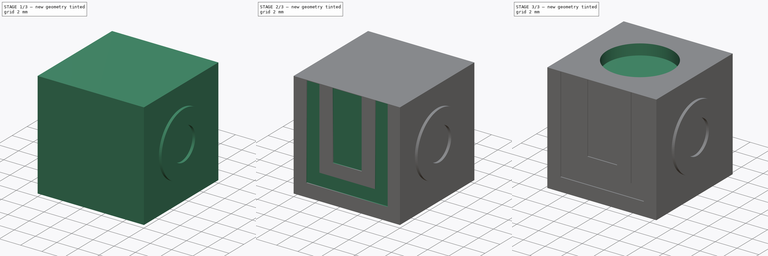
[diagram: build sequence overview — one tinted view per stage of 3, left to right]
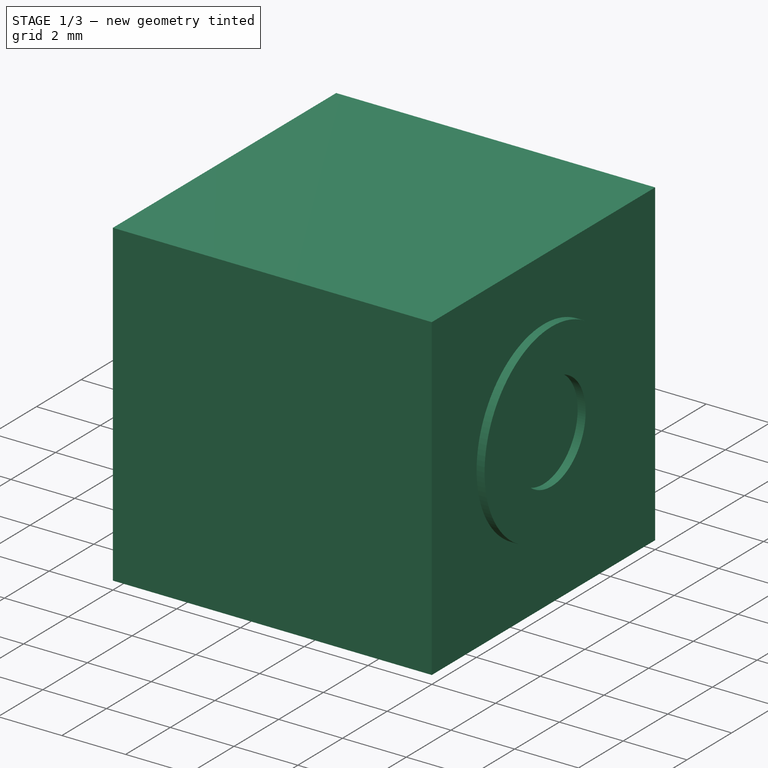
[diagram: stage 1 of 3 — iso view after this stage's code; geometry added in this stage tinted green]
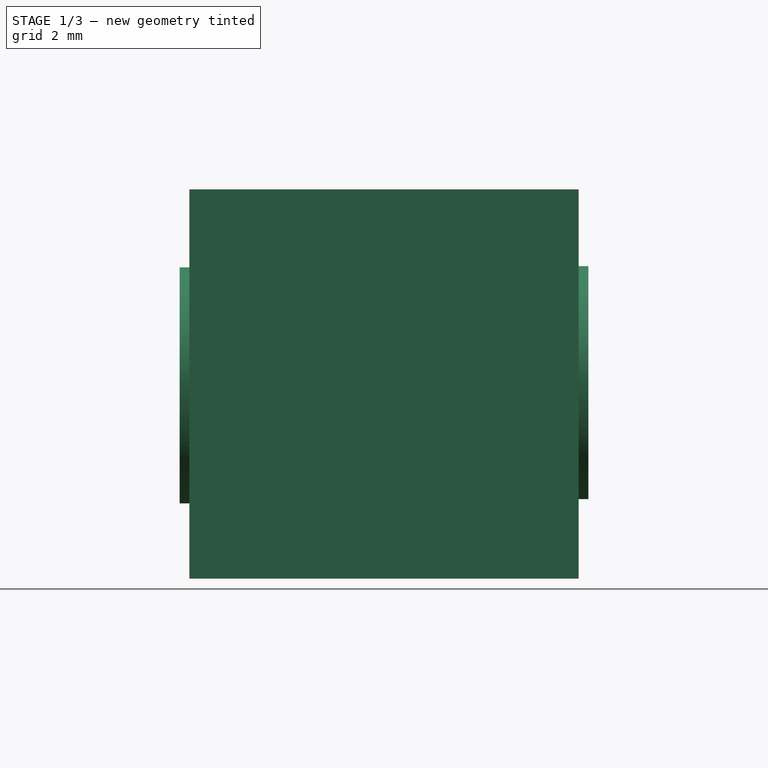
[diagram: stage 1 of 3 — front view after this stage's code; geometry added in this stage tinted green]
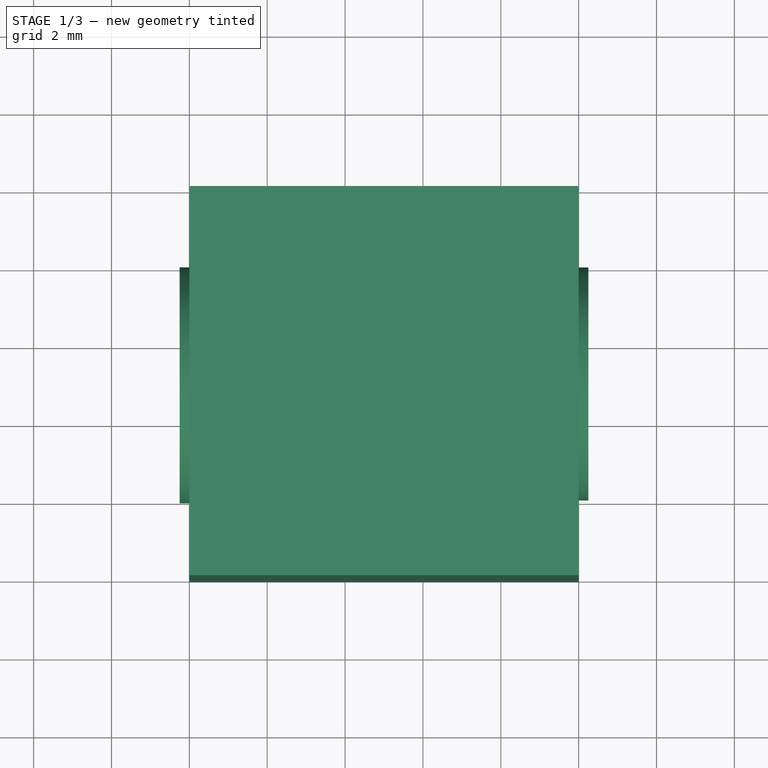
[diagram: stage 1 of 3 — top view after this stage's code; geometry added in this stage tinted green]
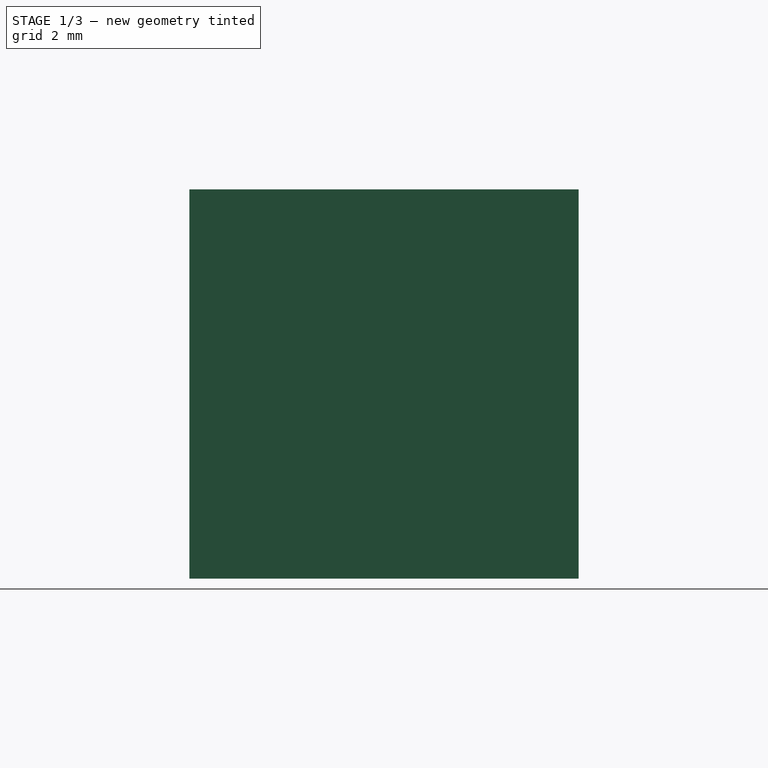
[diagram: stage 1 of 3 — right view after this stage's code; geometry added in this stage tinted green]
FCSTD DOCUMENT  (FreeCAD 0.16R6706 (Git))
Label: totem-second
License: All rights reserved
LicenseURL: http://en.wikipedia.org/wiki/All_rights_reserved
objects: Sketcher::SketchObject×6, PartDesign::Pad×3, PartDesign::Pocket×3, Part::Box×1, PartDesign::Chamfer×1
note: 20 computed .brp shape members not serialized (recipe doc carries the construction recipe); baked Part::Feature solids carry a one-line shape summary decoded from their .brp

FEATURE [Part::Box] Box  label="Cube"
  Height = 10
  Length = 10
  Width = 10
FEATURE [Sketcher::SketchObject] Sketch  label="Grip A"
  Placement = pos=(0,0,0) rot=(0.57735,-0.57735,-0.57735;2.0944rad)
  Support = -> Box [Face1]
  sketch-geometry (2):
    g0: Circle CenterX=-4.96604 CenterY=4.96604 CenterZ=0 NormalX=0 NormalY=0 NormalZ=1 Radius=3.03193
    g1: Circle CenterX=-4.96604 CenterY=4.96604 CenterZ=0 NormalX=0 NormalY=0 NormalZ=1 Radius=1.46666
  constraints (1):
    c: Coincident(g1,g0)
FEATURE [PartDesign::Pad] Pad
  Length = 0.25
  Length2 = 100
  Sketch = -> Sketch
  Type = 0
FEATURE [Sketcher::SketchObject] Sketch001  label="Grip B"
  Placement = pos=(10,0,0) rot=(0.57735,0.57735,0.57735;2.0944rad)
  Support = -> Pad [Face3]
  sketch-geometry (2):
    g0: Circle CenterX=5 CenterY=5.03397 CenterZ=0 NormalX=0 NormalY=0 NormalZ=1 Radius=2.99346
    g1: Circle CenterX=5 CenterY=5.03397 CenterZ=0 NormalX=0 NormalY=0 NormalZ=1 Radius=1.53167
  constraints (1):
    c: Coincident(g1,g0)
FEATURE [PartDesign::Pad] Pad001
  Length = 0.25
  Length2 = 100
  Sketch = -> Sketch001
  Type = 0
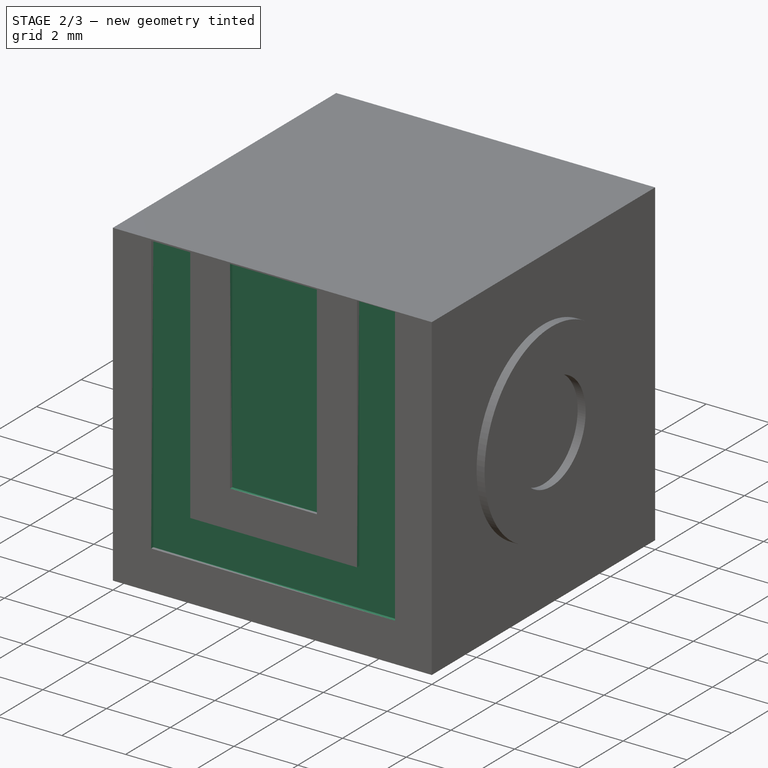
[diagram: stage 2 of 3 — iso view after this stage's code; geometry added in this stage tinted green]
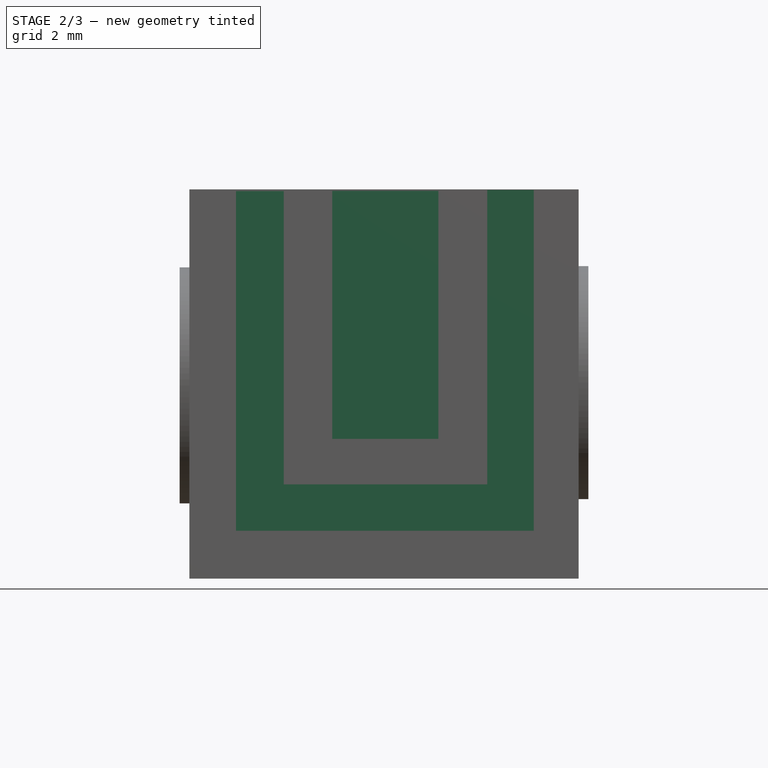
[diagram: stage 2 of 3 — front view after this stage's code; geometry added in this stage tinted green]
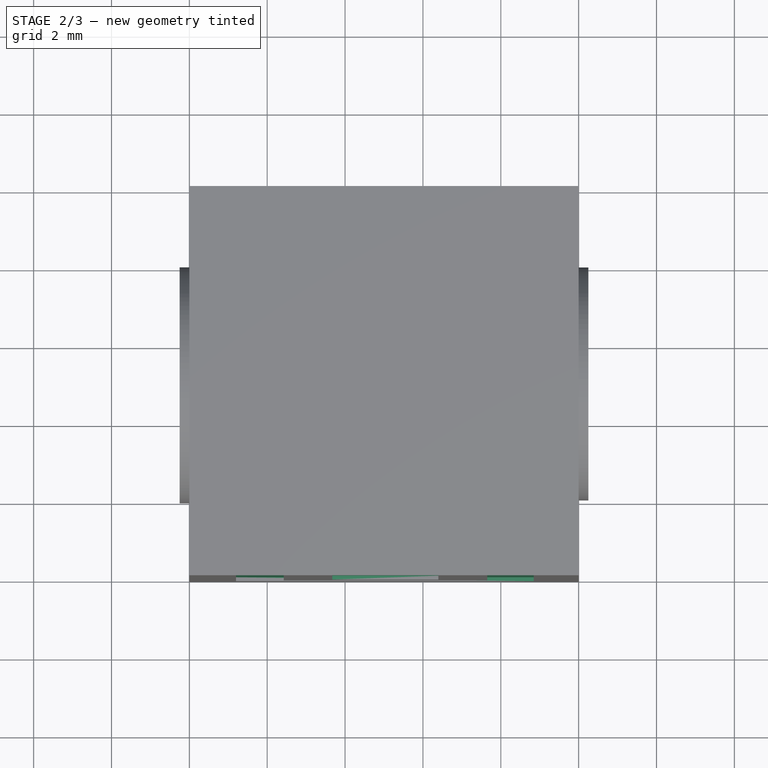
[diagram: stage 2 of 3 — top view after this stage's code; geometry added in this stage tinted green]
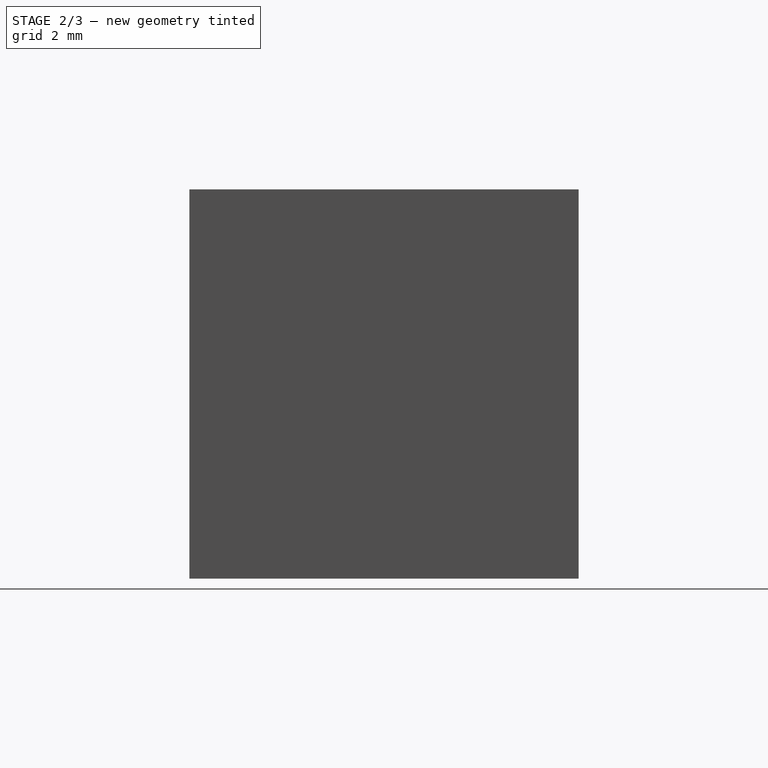
[diagram: stage 2 of 3 — right view after this stage's code; geometry added in this stage tinted green]
FEATURE [Sketcher::SketchObject] Sketch002  label="Front Sketch"
  Placement = pos=(0,0,0) rot=(1,0,0;1.5708rad)
  Support = -> Pad001 [Face1]
  sketch-geometry (12):
    g0: LineSegment StartX=1.19939 StartY=9.95507 StartZ=0 EndX=1.19939 EndY=1.23017 EndZ=0
    g1: LineSegment StartX=1.19939 StartY=1.23017 StartZ=0 EndX=8.84525 EndY=1.23017 EndZ=0
    g2: LineSegment StartX=8.84525 StartY=1.23017 StartZ=0 EndX=8.84525 EndY=9.98482 EndZ=0
    g3: LineSegment StartX=8.84525 StartY=9.98482 StartZ=0 EndX=7.65327 EndY=9.98482 EndZ=0
    g4: LineSegment StartX=7.65327 StartY=9.98482 StartZ=0 EndX=7.65327 EndY=2.4232 EndZ=0
    g5: LineSegment StartX=7.65327 StartY=2.4232 StartZ=0 EndX=2.42623 EndY=2.4232 EndZ=0
    g6: LineSegment StartX=2.42623 StartY=2.4232 StartZ=0 EndX=2.42623 EndY=9.95507 EndZ=0
    g7: LineSegment StartX=1.19939 StartY=9.95507 StartZ=0 EndX=2.42623 EndY=9.95507 EndZ=0
    g8: LineSegment StartX=3.67171 StartY=9.95984 StartZ=0 EndX=6.39586 EndY=9.95984 EndZ=0
    g9: LineSegment StartX=6.39586 StartY=9.95984 StartZ=0 EndX=6.39586 EndY=3.59103 EndZ=0
    g10: LineSegment StartX=6.39586 StartY=3.59103 StartZ=0 EndX=3.67171 EndY=3.59103 EndZ=0
    g11: LineSegment StartX=3.67171 StartY=3.59103 StartZ=0 EndX=3.67171 EndY=9.95984 EndZ=0
  constraints (24):
    c: Vertical(g0)
    c: Coincident(g0,g1)
    c: Horizontal(g1)
    c: Coincident(g1,g2)
    c: Vertical(g2)
    c: Coincident(g2,g3)
    c: Horizontal(g3)
    c: Coincident(g3,g4)
    c: Vertical(g4)
    c: Coincident(g4,g5)
    c: Horizontal(g5)
    c: Coincident(g5,g6)
    c: Vertical(g6)
    c: Coincident(g0,g7)
    c: Coincident(g7,g6)
    c: Horizontal(g7)
    c: Coincident(g8,g9)
    c: Coincident(g9,g10)
    c: Coincident(g10,g11)
    c: Coincident(g11,g8)
    c: Horizontal(g8)
    c: Horizontal(g10)
    c: Vertical(g9)
    c: Vertical(g11)
FEATURE [PartDesign::Pocket] Pocket
  Length = 0.1
  Sketch = -> Sketch002
  Type = 0
FEATURE [Sketcher::SketchObject] Sketch003  label="Back Sketch"
  Placement = pos=(0,10,0) rot=(0,0.707107,0.707107;3.14159rad)
  Support = -> Pocket [Face18]
  sketch-geometry (16):
    g0: LineSegment StartX=-1.21737 StartY=9.98938 StartZ=0 EndX=-8.78764 EndY=9.98938 EndZ=0
    g1: LineSegment StartX=-8.78764 StartY=9.98938 StartZ=0 EndX=-8.78764 EndY=2.39201 EndZ=0
    g2: LineSegment StartX=-8.78764 StartY=2.39201 StartZ=0 EndX=-7.50171 EndY=2.39201 EndZ=0
    g3: LineSegment StartX=-7.50171 StartY=8.82697 StartZ=0 EndX=-2.28789 EndY=8.82697 EndZ=0
    g4: LineSegment StartX=-2.28789 StartY=8.82697 StartZ=0 EndX=-2.28789 EndY=2.40185 EndZ=0
    g5: LineSegment StartX=-2.28789 StartY=2.40185 StartZ=0 EndX=-1.21737 EndY=2.40185 EndZ=0
    g6: LineSegment StartX=-1.21737 StartY=2.40185 StartZ=0 EndX=-1.21737 EndY=9.98938 EndZ=0
    g7: LineSegment StartX=-7.50171 StartY=8.82697 StartZ=0 EndX=-7.50171 EndY=2.39201 EndZ=0
    g8: LineSegment StartX=-9.01925 StartY=0 StartZ=0 EndX=-0.963062 EndY=0 EndZ=0
    g9: LineSegment StartX=-0.963062 StartY=0 StartZ=0 EndX=-0.963062 EndY=1.12535 EndZ=0
    g10: LineSegment StartX=-0.963062 StartY=1.12535 StartZ=0 EndX=-3.41327 EndY=1.12535 EndZ=0
    g11: LineSegment StartX=-3.41327 StartY=1.12535 StartZ=0 EndX=-3.41327 EndY=7.66688 EndZ=0
    g12: LineSegment StartX=-3.41327 StartY=7.66688 StartZ=0 EndX=-6.36812 EndY=7.66688 EndZ=0
    g13: LineSegment StartX=-6.36812 StartY=7.66688 StartZ=0 EndX=-6.36812 EndY=1.20594 EndZ=0
    g14: LineSegment StartX=-6.36812 StartY=1.20594 StartZ=0 EndX=-9.01925 EndY=1.20594 EndZ=0
    g15: LineSegment StartX=-9.01925 StartY=1.20594 StartZ=0 EndX=-9.01925 EndY=0 EndZ=0
  constraints (33):
    c: Coincident(g0,g1)
    c: Coincident(g1,g2)
    c: Coincident(g3,g4)
    c: Coincident(g4,g5)
    c: Coincident(g5,g6)
    c: Coincident(g6,g0)
    c: Coincident(g3,g7)
    c: Coincident(g7,g2)
    c: PointOnObject(g8,g-1)
    c: Horizontal(g8)
    c: Coincident(g8,g9)
    c: Vertical(g9)
    c: Coincident(g9,g10)
    c: Horizontal(g10)
    c: Coincident(g10,g11)
    c: Coincident(g11,g12)
    c: Horizontal(g12)
    c: Coincident(g12,g13)
    c: Vertical(g13)
    c: Coincident(g13,g14)
    c: Horizontal(g14)
    c: Coincident(g14,g15)
    c: Coincident(g15,g8)
    c: Vertical(g11)
    c: Vertical(g4)
    c: Horizontal(g5)
    c: Vertical(g6)
    c: Horizontal(g3)
    c: Horizontal(g0)
    c: Vertical(g1)
    c: Vertical(g15)
    c: Vertical(g7)
    c: Horizontal(g2)
FEATURE [PartDesign::Pocket] Pocket001
  Length = 0.1
  Sketch = -> Sketch003
  Type = 0
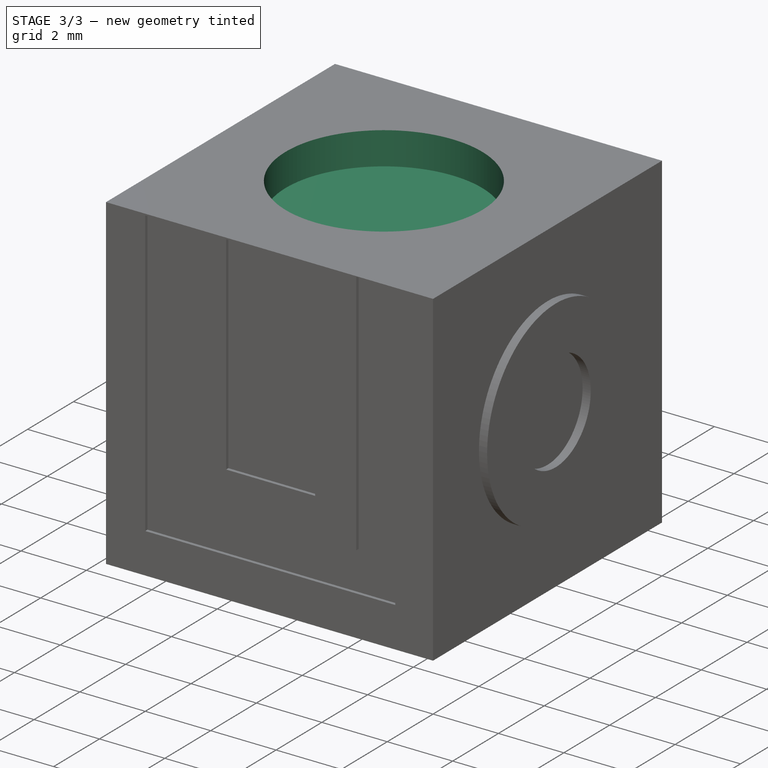
[diagram: stage 3 of 3 — iso view after this stage's code; geometry added in this stage tinted green]
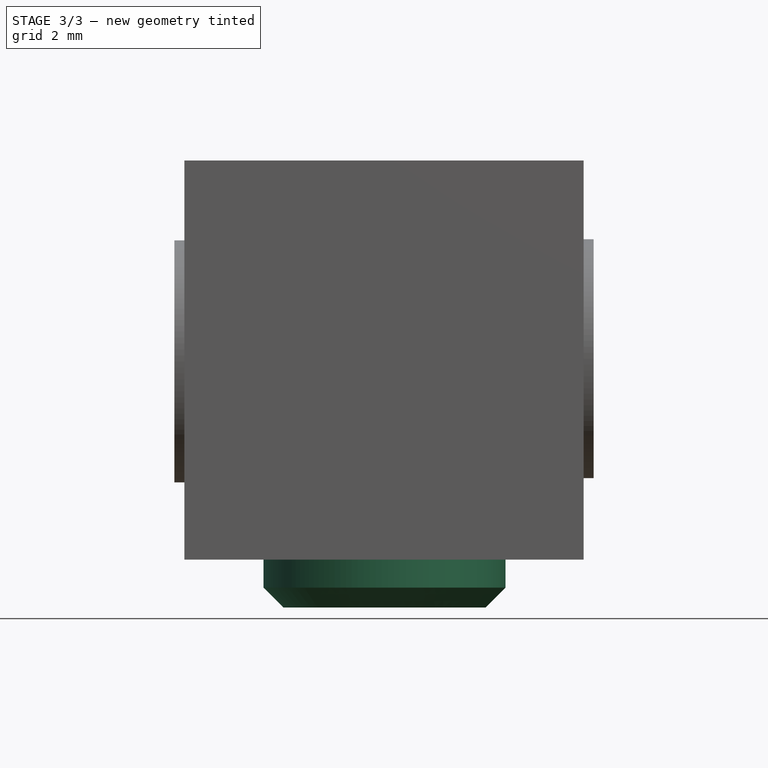
[diagram: stage 3 of 3 — front view after this stage's code; geometry added in this stage tinted green]
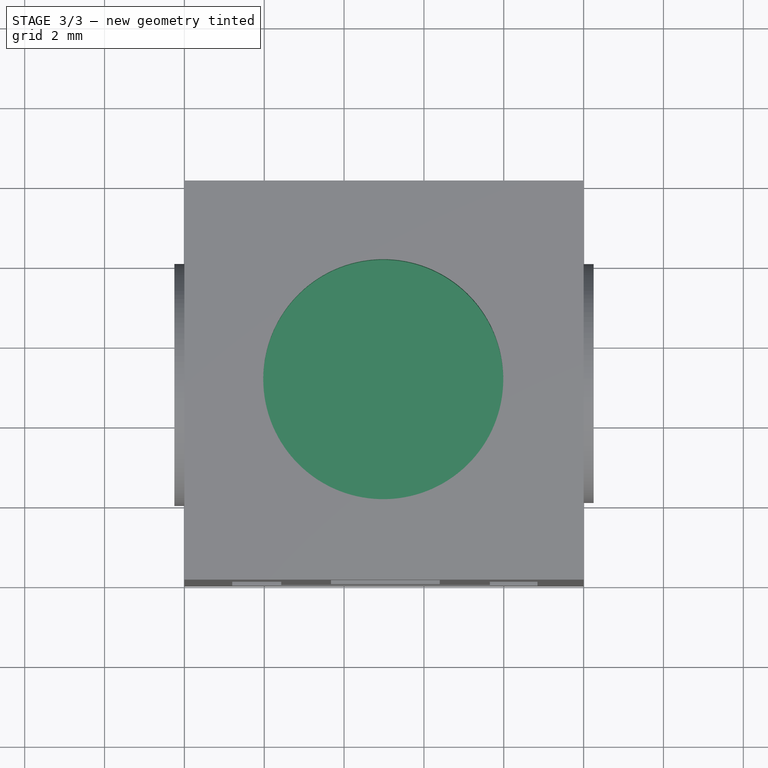
[diagram: stage 3 of 3 — top view after this stage's code; geometry added in this stage tinted green]
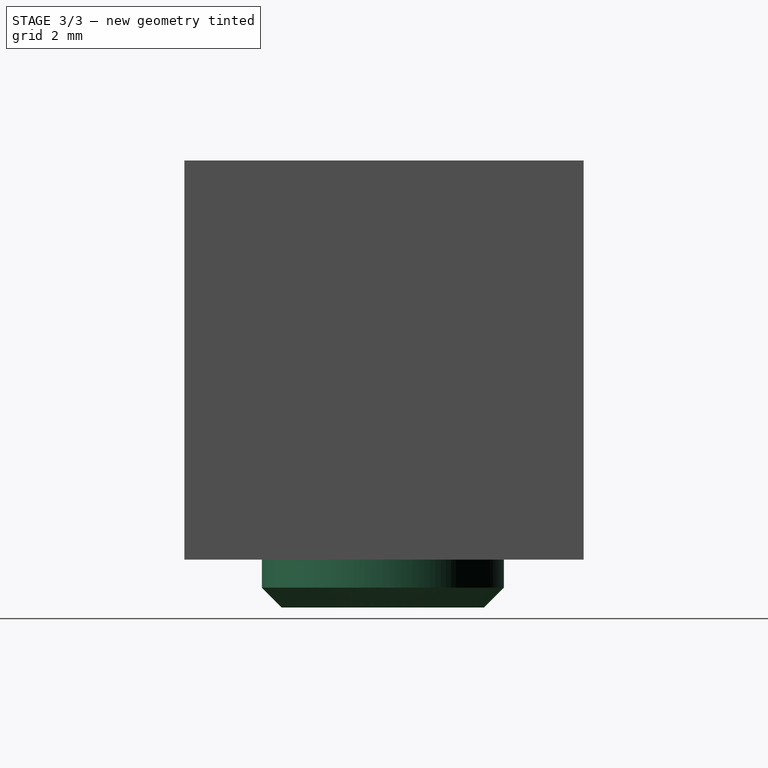
[diagram: stage 3 of 3 — right view after this stage's code; geometry added in this stage tinted green]
FEATURE [Sketcher::SketchObject] Sketch004
  Placement = pos=(0,0,0) rot=(1,0,0;3.14159rad)
  Support = -> Pocket001 [Face2]
  sketch-geometry (1):
    g0: Circle CenterX=5.0123 CenterY=-4.97047 CenterZ=0 NormalX=0 NormalY=0 NormalZ=1 Radius=3.03196
FEATURE [PartDesign::Pad] Pad002
  Length = 1.2
  Length2 = 100
  Sketch = -> Sketch004
  Type = 0
FEATURE [PartDesign::Chamfer] Chamfer
  Base = -> Pad002 [Edge81]
  Size = 0.5
FEATURE [Sketcher::SketchObject] Sketch005
  Placement = pos=(0,0,10) rot=(0,0,1;0rad)
  Support = -> Chamfer [Face17]
  sketch-geometry (1):
    g0: Circle CenterX=4.9814 CenterY=5.02297 CenterZ=0 NormalX=0 NormalY=0 NormalZ=1 Radius=3.00622
FEATURE [PartDesign::Pocket] Pocket002
  Length = 1
  Sketch = -> Sketch005
  Type = 0
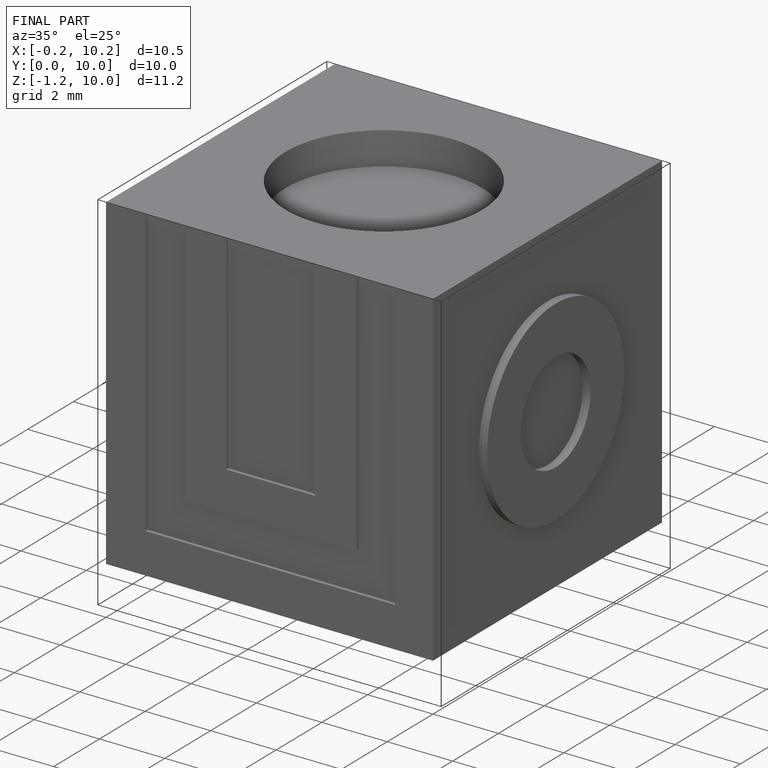
[diagram: finished part — iso view with bounding-box wireframe]
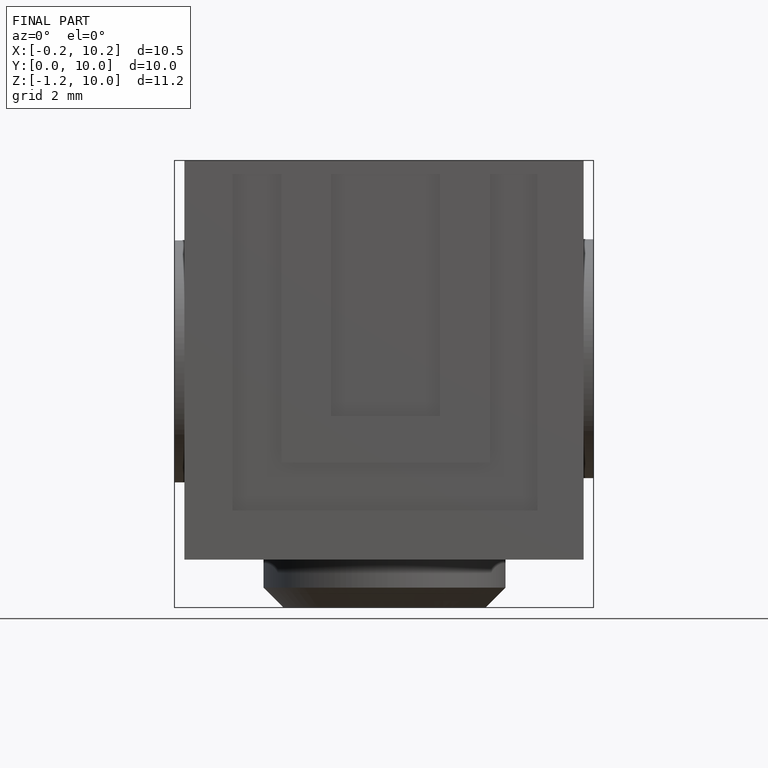
[diagram: finished part — front view with bounding-box wireframe]
